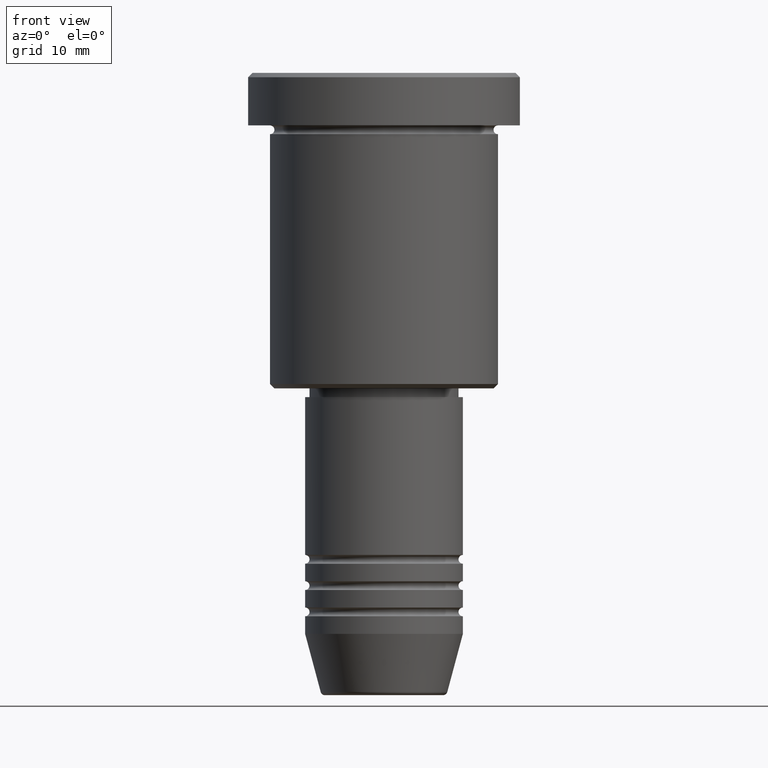
[diagram: clean part render]
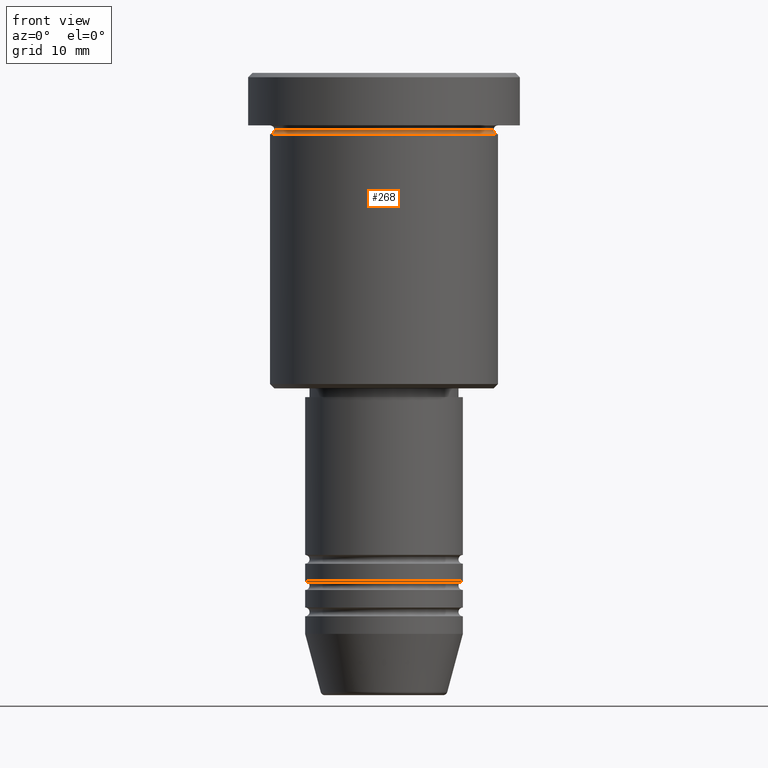
[diagram: same view with one face highlighted and labeled with its STEP entity id]
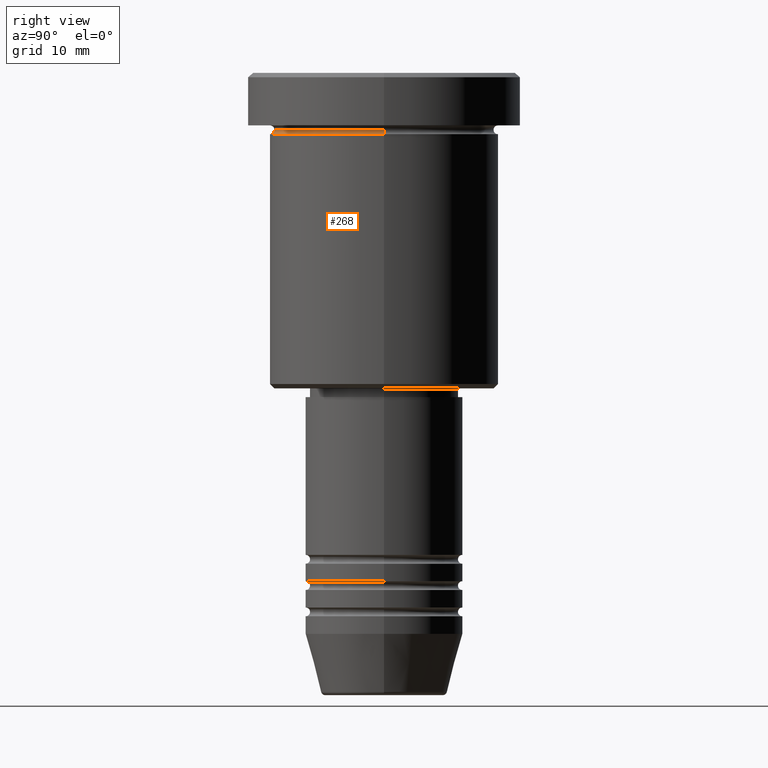
[diagram: same view with one face highlighted and labeled with its STEP entity id]
A machine part, front view. The second image highlights one B-rep face of the part: STEP entity #268.
A second angle (right view) of the same face is appended — the face is thin or edge-on in the first view.
In plain terms, the highlighted toroidal blend (fillet) surface has major radius 13 mm and minor (blend) radius 0.5 mm.
Its self-contained STEP definition (entity closure, byte-faithful):
#6 = CARTESIAN_POINT ( 'NONE',  ( -12.49999999999999822, 1.561424668912875308E-15, -6.499999999999995559 ) ) ;
#55 = DIRECTION ( 'NONE',  ( 0.000000000000000000, -1.000000000000000000, 0.000000000000000000 ) ) ;
#126 = DIRECTION ( 'NONE',  ( 1.000000000000000000, 0.000000000000000000, 0.000000000000000000 ) ) ;
#184 = DIRECTION ( 'NONE',  ( -0.000000000000000000, -0.000000000000000000, 1.000000000000000000 ) ) ;
#229 = CIRCLE ( 'NONE', #327, 12.49999999999999822 ) ;
#266 = CARTESIAN_POINT ( 'NONE',  ( -13.00000000000000000, 1.592040838891559095E-15, -6.999999999999995559 ) ) ;
#268 = ADVANCED_FACE ( 'NONE', ( #467 ), #970, .F. ) ;
#285 = DIRECTION ( 'NONE',  ( -0.000000000000000000, -0.000000000000000000, 1.000000000000000000 ) ) ;
#309 = AXIS2_PLACEMENT_3D ( 'NONE', #493, #779, #670 ) ;
#327 = AXIS2_PLACEMENT_3D ( 'NONE', #822, #285, #1127 ) ;
#334 = EDGE_LOOP ( 'NONE', ( #704, #542, #933, #397 ) ) ;
#388 = DIRECTION ( 'NONE',  ( -0.000000000000000000, -0.000000000000000000, 1.000000000000000000 ) ) ;
#397 = ORIENTED_EDGE ( 'NONE', *, *, #827, .F. ) ;
#402 = AXIS2_PLACEMENT_3D ( 'NONE', #566, #388, #126 ) ;
#451 = DIRECTION ( 'NONE',  ( 1.000000000000000000, 0.000000000000000000, 0.000000000000000000 ) ) ;
#467 = FACE_OUTER_BOUND ( 'NONE', #334, .T. ) ;
#477 = CARTESIAN_POINT ( 'NONE',  ( 13.00000000000000000, 0.000000000000000000, -6.499999999999995559 ) ) ;
#493 = CARTESIAN_POINT ( 'NONE',  ( -13.00000000000000000, 1.592040838891559095E-15, -6.499999999999995559 ) ) ;
#496 = AXIS2_PLACEMENT_3D ( 'NONE', #658, #184, #451 ) ;
#517 = VERTEX_POINT ( 'NONE', #266 ) ;
#542 = ORIENTED_EDGE ( 'NONE', *, *, #854, .T. ) ;
#566 = CARTESIAN_POINT ( 'NONE',  ( 0.000000000000000000, 0.000000000000000000, -6.499999999999995559 ) ) ;
#658 = CARTESIAN_POINT ( 'NONE',  ( 0.000000000000000000, 0.000000000000000000, -6.999999999999995559 ) ) ;
#662 = EDGE_CURVE ( 'NONE', #1154, #752, #229, .T. ) ;
#667 = DIRECTION ( 'NONE',  ( 0.000000000000000000, 0.000000000000000000, -1.000000000000000000 ) ) ;
#670 = DIRECTION ( 'NONE',  ( -1.000000000000000000, 1.224646799147353454E-16, 0.000000000000000000 ) ) ;
#676 = CIRCLE ( 'NONE', #309, 0.5000000000000004441 ) ;
#678 = AXIS2_PLACEMENT_3D ( 'NONE', #477, #55, #667 ) ;
#704 = ORIENTED_EDGE ( 'NONE', *, *, #662, .F. ) ;
#752 = VERTEX_POINT ( 'NONE', #1022 ) ;
#776 = CIRCLE ( 'NONE', #678, 0.5000000000000004441 ) ;
#779 = DIRECTION ( 'NONE',  ( 1.224646799147353207E-16, 1.000000000000000000, 0.000000000000000000 ) ) ;
#822 = CARTESIAN_POINT ( 'NONE',  ( 0.000000000000000000, 0.000000000000000000, -6.499999999999995559 ) ) ;
#827 = EDGE_CURVE ( 'NONE', #752, #1089, #776, .T. ) ;
#854 = EDGE_CURVE ( 'NONE', #1154, #517, #676, .T. ) ;
#926 = CARTESIAN_POINT ( 'NONE',  ( 13.00000000000000000, 0.000000000000000000, -6.999999999999995559 ) ) ;
#933 = ORIENTED_EDGE ( 'NONE', *, *, #1153, .T. ) ;
#970 = TOROIDAL_SURFACE ( 'NONE', #402, 13.00000000000000000, 0.5000000000000000000 ) ;
#1022 = CARTESIAN_POINT ( 'NONE',  ( 12.49999999999999822, 0.000000000000000000, -6.499999999999995559 ) ) ;
#1025 = CIRCLE ( 'NONE', #496, 13.00000000000000000 ) ;
#1089 = VERTEX_POINT ( 'NONE', #926 ) ;
#1127 = DIRECTION ( 'NONE',  ( 1.000000000000000000, 0.000000000000000000, 0.000000000000000000 ) ) ;
#1153 = EDGE_CURVE ( 'NONE', #517, #1089, #1025, .T. ) ;
#1154 = VERTEX_POINT ( 'NONE', #6 ) ;